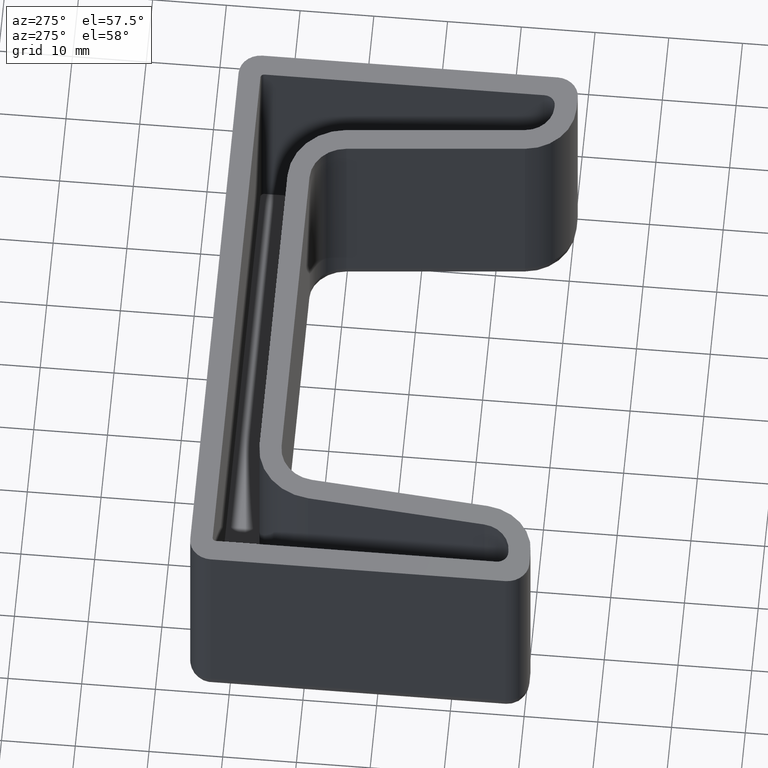
[diagram: clean part render]
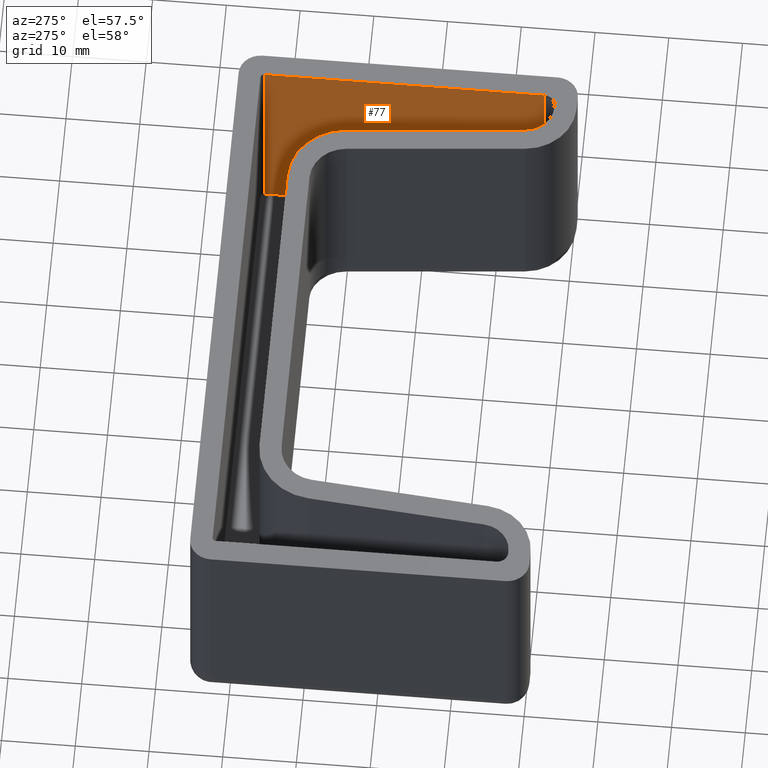
[diagram: same view with one face highlighted and labeled with its STEP entity id]
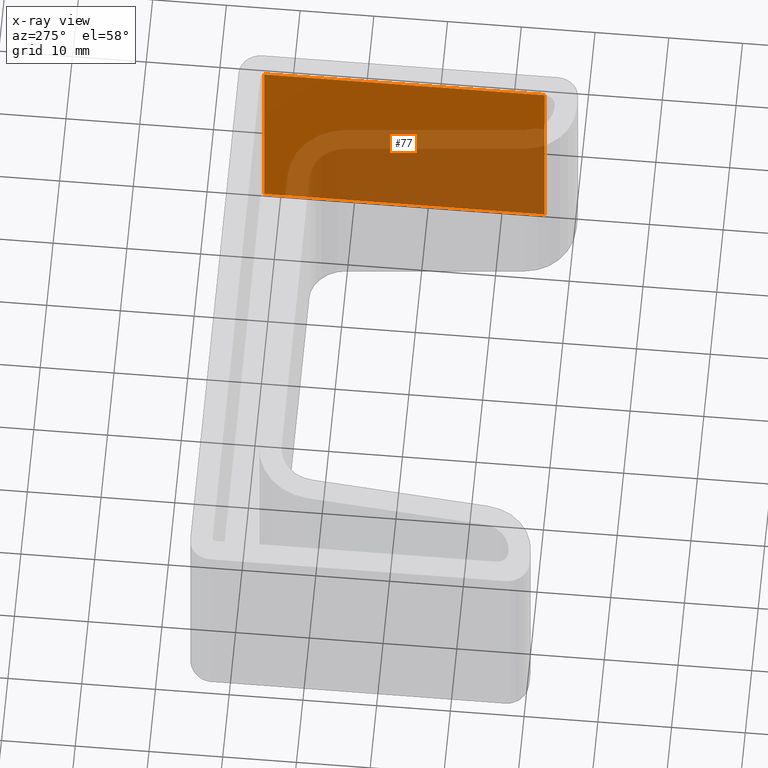
[diagram: x-ray of the same camera — body ghosted, the highlighted face saturated]
A machine part, auxiliary view. The second image highlights one B-rep face of the part: STEP entity #77.
The next image is the same camera in x-ray: the body ghosted, the highlighted face saturated — about 56% of this face is hidden behind the body in this view.
In plain terms, the highlighted planar face has unit normal (1, 0, -0).
Its self-contained STEP definition (entity closure, byte-faithful):
#77 = ADVANCED_FACE( '', ( #131 ), #132, .F. );
#131 = FACE_OUTER_BOUND( '', #234, .T. );
#132 = PLANE( '', #235 );
#234 = EDGE_LOOP( '', ( #347, #348, #349, #350 ) );
#235 = AXIS2_PLACEMENT_3D( '', #351, #352, #353 );
#347 = ORIENTED_EDGE( '', *, *, #737, .F. );
#348 = ORIENTED_EDGE( '', *, *, #742, .F. );
#349 = ORIENTED_EDGE( '', *, *, #743, .F. );
#350 = ORIENTED_EDGE( '', *, *, #744, .T. );
#351 = CARTESIAN_POINT( '', ( 37.5000000000000, 2.50000000000000, -3.77559854040921E-015 ) );
#352 = DIRECTION( '', ( 1.00000000000000, 1.11022302462516E-016, -1.22460635382238E-016 ) );
#353 = DIRECTION( '', ( 1.11022302462516E-016, -1.00000000000000, 1.22460635382238E-016 ) );
#737 = EDGE_CURVE( '', #863, #859, #865, .T. );
#742 = EDGE_CURVE( '', #874, #863, #875, .T. );
#743 = EDGE_CURVE( '', #876, #874, #877, .T. );
#744 = EDGE_CURVE( '', #876, #859, #878, .T. );
#859 = VERTEX_POINT( '', #1059 );
#863 = VERTEX_POINT( '', #1064 );
#865 = LINE( '', #1066, #1067 );
#874 = VERTEX_POINT( '', #1080 );
#875 = LINE( '', #1081, #1082 );
#876 = VERTEX_POINT( '', #1083 );
#877 = LINE( '', #1084, #1085 );
#878 = LINE( '', #1086, #1087 );
#1059 = CARTESIAN_POINT( '', ( 37.5000000000000, -36.0000000000000, -30.0000000000000 ) );
#1064 = CARTESIAN_POINT( '', ( 37.5000000000000, -36.0000000000000, 9.39135921806944E-016 ) );
#1066 = CARTESIAN_POINT( '', ( 37.5000000000000, -36.0000000000000, 9.39135921806944E-016 ) );
#1067 = VECTOR( '', #1337, 1000.00000000000 );
#1080 = CARTESIAN_POINT( '', ( 37.5000000000000, 2.00000000000000, -3.71436822271809E-015 ) );
#1081 = CARTESIAN_POINT( '', ( 37.5000000000000, -7.49999999999999, -2.55099218658683E-015 ) );
#1082 = VECTOR( '', #1342, 1000.00000000000 );
#1083 = CARTESIAN_POINT( '', ( 37.5000000000000, 2.00000000000000, -30.0000000000000 ) );
#1084 = CARTESIAN_POINT( '', ( 37.5000000000000, 2.00000000000000, -3.71436822271809E-015 ) );
#1085 = VECTOR( '', #1343, 1000.00000000000 );
#1086 = CARTESIAN_POINT( '', ( 37.5000000000000, -37.5000000000000, -30.0000000000000 ) );
#1087 = VECTOR( '', #1344, 1000.00000000000 );
#1337 = DIRECTION( '', ( -1.22460635382238E-016, -1.22460635382238E-016, -1.00000000000000 ) );
#1342 = DIRECTION( '', ( 1.11022302462516E-016, -1.00000000000000, 1.22460635382238E-016 ) );
#1343 = DIRECTION( '', ( 1.22460635382238E-016, 1.22460635382238E-016, 1.00000000000000 ) );
#1344 = DIRECTION( '', ( 1.11022302462516E-016, -1.00000000000000, 1.22460635382238E-016 ) );